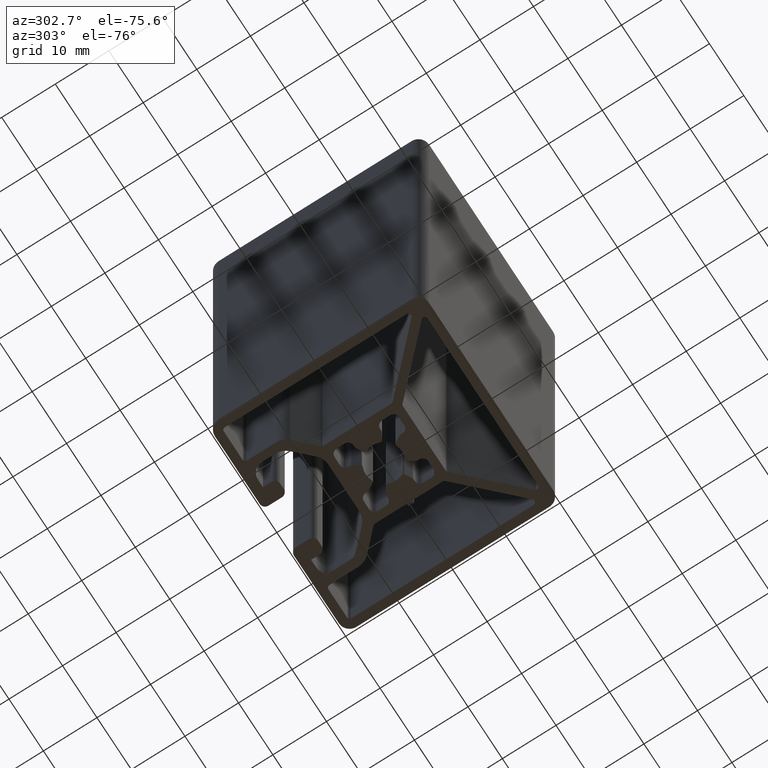
[diagram: clean part render]
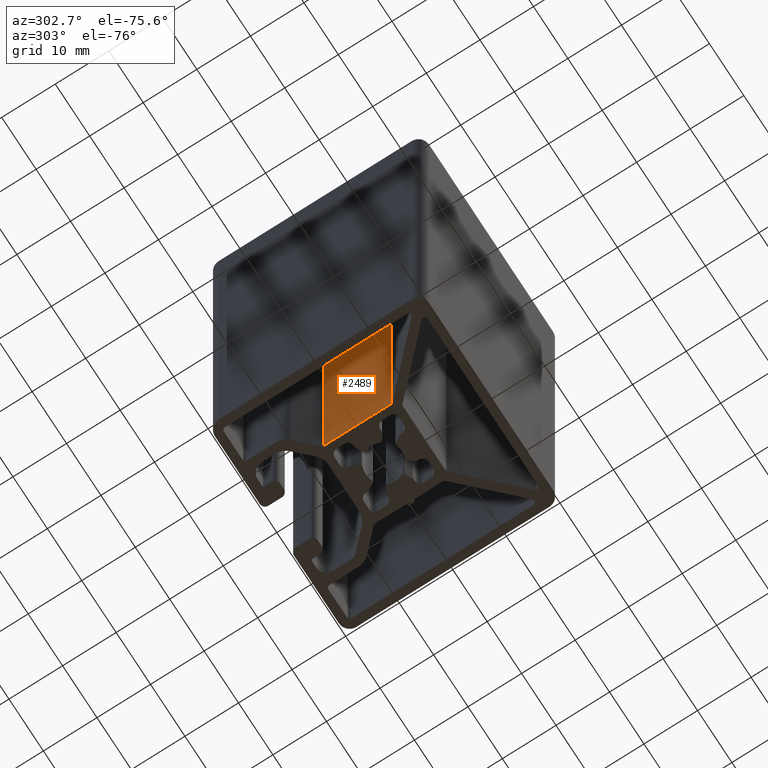
[diagram: same view with one face highlighted and labeled with its STEP entity id]
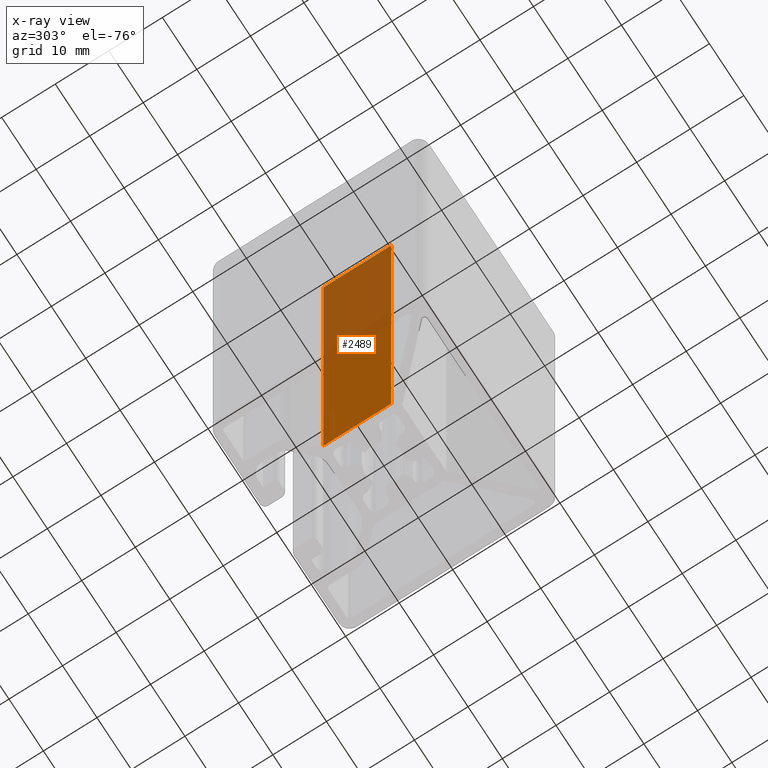
[diagram: x-ray of the same camera — body ghosted, the highlighted face saturated]
A machine part, auxiliary view. The second image highlights one B-rep face of the part: STEP entity #2489.
The next image is the same camera in x-ray: the body ghosted, the highlighted face saturated — about 50% of this face is hidden behind the body in this view.
In plain terms, the highlighted planar face has unit normal (1, -0, 0).
Its self-contained STEP definition (entity closure, byte-faithful):
#225=FACE_OUTER_BOUND('',#356,.T.);
#356=EDGE_LOOP('',(#1662,#1663,#1664,#1665));
#499=LINE('',#3691,#754);
#500=LINE('',#3694,#755);
#501=LINE('',#3696,#756);
#502=LINE('',#3697,#757);
#754=VECTOR('',#2907,100.);
#755=VECTOR('',#2910,12.6765981284232);
#756=VECTOR('',#2911,12.6765981284232);
#757=VECTOR('',#2912,100.);
#1009=VERTEX_POINT('',#3687);
#1010=VERTEX_POINT('',#3689);
#1011=VERTEX_POINT('',#3693);
#1012=VERTEX_POINT('',#3695);
#1271=EDGE_CURVE('',#1010,#1009,#499,.T.);
#1272=EDGE_CURVE('',#1009,#1011,#500,.T.);
#1273=EDGE_CURVE('',#1012,#1010,#501,.T.);
#1274=EDGE_CURVE('',#1012,#1011,#502,.T.);
#1662=ORIENTED_EDGE('',*,*,#1272,.F.);
#1663=ORIENTED_EDGE('',*,*,#1271,.F.);
#1664=ORIENTED_EDGE('',*,*,#1273,.F.);
#1665=ORIENTED_EDGE('',*,*,#1274,.T.);
#2422=PLANE('',#2626);
#2489=ADVANCED_FACE('',(#225),#2422,.F.);
#2626=AXIS2_PLACEMENT_3D('',#3692,#2908,#2909);
#2907=DIRECTION('',(0.,0.,1.));
#2908=DIRECTION('center_axis',(1.,-3.50322070125687E-16,0.));
#2909=DIRECTION('ref_axis',(0.,0.,-1.));
#2910=DIRECTION('',(-3.50322070125687E-16,-1.,0.));
#2911=DIRECTION('',(3.50322070125687E-16,1.,0.));
#2912=DIRECTION('',(0.,0.,1.));
#3687=CARTESIAN_POINT('',(-7.49999300000001,6.51508175950821,100.));
#3689=CARTESIAN_POINT('',(-7.49999300000001,6.51508175950821,0.));
#3691=CARTESIAN_POINT('',(-7.49999300000001,6.51508175950821,0.));
#3692=CARTESIAN_POINT('Origin',(-7.49999300000001,6.51508175950821,0.));
#3693=CARTESIAN_POINT('',(-7.49999300000002,-6.16151636891501,100.));
#3694=CARTESIAN_POINT('',(-7.49999300000001,3.2575408797541,100.));
#3695=CARTESIAN_POINT('',(-7.49999300000002,-6.16151636891501,0.));
#3696=CARTESIAN_POINT('',(-7.49999300000001,3.2575408797541,0.));
#3697=CARTESIAN_POINT('',(-7.49999300000002,-6.16151636891501,0.));